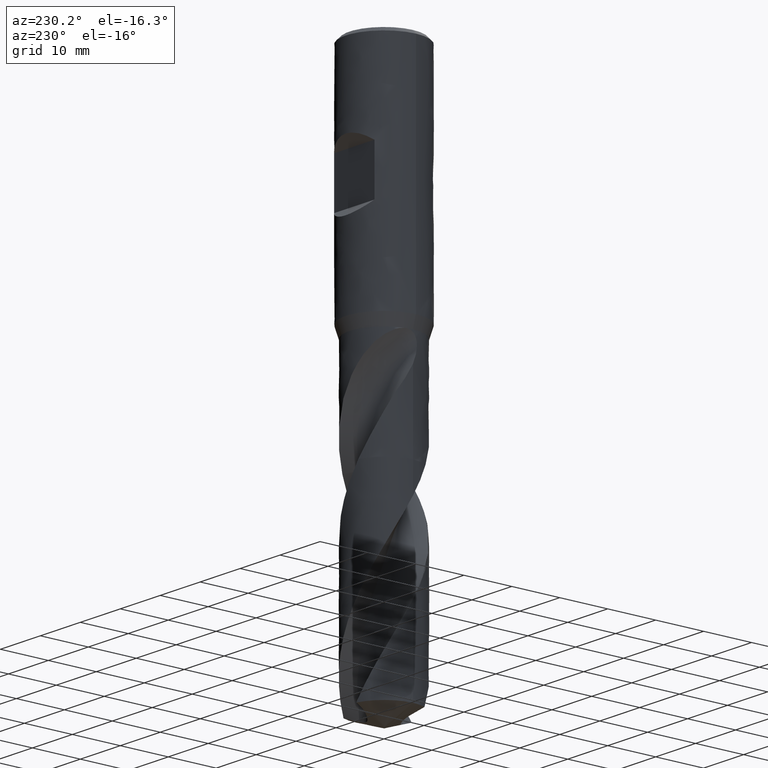
[diagram: clean part render]
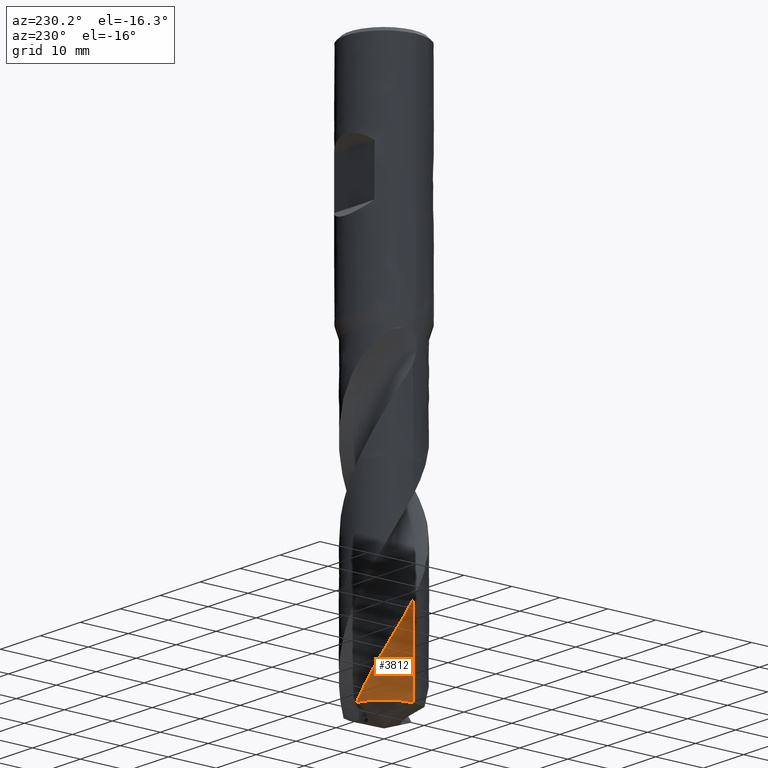
[diagram: same view with one face highlighted and labeled with its STEP entity id]
A machine part, auxiliary view. The second image highlights one B-rep face of the part: STEP entity #3812.
In plain terms, the highlighted face is a freeform B-spline surface patch.
Its self-contained STEP definition (entity closure, byte-faithful):
#2054 = VERTEX_POINT('', #2055);
#2055 = CARTESIAN_POINT('', (-1.53712467987491, 7.08517803012172, -112.36121580157));
#2197 = EDGE_CURVE('', #2198, #2054, #2200, .T.);
#2198 = VERTEX_POINT('', #2199);
#2199 = CARTESIAN_POINT('', (-3.03157197665095, 6.58574759236829, -109.576827914167));
#2200 = B_SPLINE_CURVE_WITH_KNOTS('', 3, (#2201, #2202, #2203, #2204, #2205, #2206, #2207, #2208, #2209, #2210, #2211, #2212, #2213), .UNSPECIFIED., .F., .U., (4, 3, 3, 3, 4), (0., 0.996758533560666, 1.99337488013203, 2.98984756793091, 3.20071236530099), .UNSPECIFIED.);
#2201 = CARTESIAN_POINT('', (-3.03157197665099, 6.58574759236827, -109.576827914167));
#2202 = CARTESIAN_POINT('', (-2.88264870522454, 6.6543004195144, -109.865816359974));
#2203 = CARTESIAN_POINT('', (-2.73139469751589, 6.71780082079541, -110.154855646321));
#2204 = CARTESIAN_POINT('', (-2.57820367295886, 6.77608779612111, -110.443866184527));
#2205 = CARTESIAN_POINT('', (-2.4250345010069, 6.83436645684576, -110.732835495559));
#2206 = CARTESIAN_POINT('', (-2.26988539851555, 6.88744983259345, -111.02185644557));
#2207 = CARTESIAN_POINT('', (-2.113155312244, 6.9352054494683, -111.31084700141));
#2208 = CARTESIAN_POINT('', (-1.95644781806808, 6.98295418253744, -111.599795900268));
#2209 = CARTESIAN_POINT('', (-1.79811790533384, 7.02538945238311, -111.888796210449));
#2210 = CARTESIAN_POINT('', (-1.63857253178527, 7.06240610968234, -112.177766256048));
#2211 = CARTESIAN_POINT('', (-1.6048109412504, 7.0702392495529, -112.238915558841));
#2212 = CARTESIAN_POINT('', (-1.57099371086975, 7.07783016628481, -112.300065675288));
#2213 = CARTESIAN_POINT('', (-1.53712467987492, 7.08517803012172, -112.36121580157));
#3589 = VERTEX_POINT('', #3590);
#3590 = CARTESIAN_POINT('', (-7.25, 6.26474322883328E-15, -95.0610211563863));
#3663 = EDGE_CURVE('', #3589, #3664, #3666, .T.);
#3664 = VERTEX_POINT('', #3665);
#3665 = CARTESIAN_POINT('', (-7.25, 7.3240746286758E-15, -112.36121580157));
#3666 = LINE('', #3667, #3668);
#3667 = CARTESIAN_POINT('', (-7.25, 6.26474322883328E-15, -95.0610211563863));
#3668 = VECTOR('', #3669, 17.3001946451837);
#3669 = DIRECTION('', (0., 1.05933139984252E-15, -17.3001946451837));
#3697 = EDGE_CURVE('', #2198, #3589, #3698, .T.);
#3698 = B_SPLINE_CURVE_WITH_KNOTS('', 3, (#3699, #3700, #3701, #3702, #3703, #3704, #3705, #3706, #3707, #3708, #3709, #3710, #3711, #3712, #3713, #3714, #3715, #3716, #3717, #3718, #3719, #3720, #3721, #3722, #3723, #3724, #3725, #3726, #3727, #3728, #3729, #3730, #3731, #3732, #3733, #3734, #3735, #3736, #3737, #3738, #3739, #3740, #3741, #3742, #3743, #3744, #3745, #3746, #3747, #3748, #3749, #3750), .UNSPECIFIED., .F., .U., (4, 3, 3, 3, 3, 3, 3, 3, 3, 3, 3, 3, 3, 3, 3, 3, 3, 4), (0., 0.998228876727128, 1.99631289244956, 2.99425419856716, 3.99205334051942, 4.98971126469942, 5.98722884260465, 6.98460554234664, 7.98184161488505, 8.97893669278574, 9.97588933793899, 10.9726989482532, 11.9693638968679, 12.9658819010708, 13.962251277234, 14.9584690400776, 15.9545320105228, 16.7009062836402), .UNSPECIFIED.);
#3699 = CARTESIAN_POINT('', (-3.03157197665095, 6.58574759236829, -109.576827914167));
#3700 = CARTESIAN_POINT('', (-3.18071492847851, 6.51709364125128, -109.287413174357));
#3701 = CARTESIAN_POINT('', (-3.32756605708097, 6.44335134881758, -108.997970676306));
#3702 = CARTESIAN_POINT('', (-3.47174463071432, 6.36470653047777, -108.708582687342));
#3703 = CARTESIAN_POINT('', (-3.61590228143759, 6.2860731249188, -108.419236693791));
#3704 = CARTESIAN_POINT('', (-3.75742703736898, 6.20251736680453, -108.129862851594));
#3705 = CARTESIAN_POINT('', (-3.89595047208507, 6.11425137846492, -107.840542755416));
#3706 = CARTESIAN_POINT('', (-4.03445410022746, 6.02599801071047, -107.551264027255));
#3707 = CARTESIAN_POINT('', (-4.169997324491, 5.93301016515341, -107.261958441879));
#3708 = CARTESIAN_POINT('', (-4.3022248150891, 5.83552582381671, -106.972706322752));
#3709 = CARTESIAN_POINT('', (-4.43443346889718, 5.73805536984986, -106.683495409743));
#3710 = CARTESIAN_POINT('', (-4.56336417306603, 5.63606266118761, -106.394256240302));
#3711 = CARTESIAN_POINT('', (-4.68868197656585, 5.52980662615128, -106.105071744025));
#3712 = CARTESIAN_POINT('', (-4.81398204392992, 5.42356562945276, -105.815928175816));
#3713 = CARTESIAN_POINT('', (-4.93570443434389, 5.31303340358926, -105.526757036352));
#3714 = CARTESIAN_POINT('', (-5.0535299008309, 5.19849358385755, -105.237639329457));
#3715 = CARTESIAN_POINT('', (-5.17133879213227, 5.08396987710067, -104.948562294411));
#3716 = CARTESIAN_POINT('', (-5.28528627020376, 4.96540623884218, -104.659458127032));
#3717 = CARTESIAN_POINT('', (-5.39507278282377, 4.84310743924128, -104.370407834292));
#3718 = CARTESIAN_POINT('', (-5.50484379043156, 4.7208259117473, -104.081398363765));
#3719 = CARTESIAN_POINT('', (-5.61048509468228, 4.59477687695877, -103.792360394956));
#3720 = CARTESIAN_POINT('', (-5.71172083416232, 4.46528219853977, -103.503377050375));
#3721 = CARTESIAN_POINT('', (-5.81294229969858, 4.33580577849246, -103.214434451602));
#3722 = CARTESIAN_POINT('', (-5.90978758448297, 4.20284851143182, -102.925464527801));
#3723 = CARTESIAN_POINT('', (-6.00200055042663, 4.06675415936081, -102.636547844196));
#3724 = CARTESIAN_POINT('', (-6.09420047880166, 3.93067904904649, -102.347672009196));
#3725 = CARTESIAN_POINT('', (-6.18179642704807, 3.79142791680896, -102.058768696209));
#3726 = CARTESIAN_POINT('', (-6.26455699813397, 3.64935961740286, -101.769919606435));
#3727 = CARTESIAN_POINT('', (-6.3473057470619, 3.50731161212784, -101.481111778091));
#3728 = CARTESIAN_POINT('', (-6.42524305831477, 3.36240860123907, -101.192275454669));
#3729 = CARTESIAN_POINT('', (-6.49816346360379, 3.21502279934138, -100.903493542396));
#3730 = CARTESIAN_POINT('', (-6.57107340685282, 3.06765814318673, -100.614753062257));
#3731 = CARTESIAN_POINT('', (-6.638988556976, 2.91776938585364, -100.325985387623));
#3732 = CARTESIAN_POINT('', (-6.70172730376602, 2.76574603786339, -100.037270964886));
#3733 = CARTESIAN_POINT('', (-6.764456945614, 2.61374475221649, -99.7485984417436));
#3734 = CARTESIAN_POINT('', (-6.82202997386399, 2.45956536802603, -99.4598980223772));
#3735 = CARTESIAN_POINT('', (-6.87429269763511, 2.30360584893353, -99.1712521138139));
#3736 = CARTESIAN_POINT('', (-6.92654771599307, 2.14766932390722, -98.882648762083));
#3737 = CARTESIAN_POINT('', (-6.9735082663769, 1.98991058331535, -98.5940170854794));
#3738 = CARTESIAN_POINT('', (-7.0150481567613, 1.83073738103532, -98.3054395212199));
#3739 = CARTESIAN_POINT('', (-7.05658185158029, 1.67158791901982, -98.0169049975452));
#3740 = CARTESIAN_POINT('', (-7.09270845865225, 1.5109783219521, -97.7283432088438));
#3741 = CARTESIAN_POINT('', (-7.12332904177819, 1.34932700356874, -97.4398349740025));
#3742 = CARTESIAN_POINT('', (-7.15394496549931, 1.18770028298376, -97.1513706402407));
#3743 = CARTESIAN_POINT('', (-7.17906532608151, 1.02498623183632, -96.8628779200683));
#3744 = CARTESIAN_POINT('', (-7.19862044472806, 0.861605299858214, -96.5744399339332));
#3745 = CARTESIAN_POINT('', (-7.21817252489865, 0.698249754022834, -96.2860467653162));
#3746 = CARTESIAN_POINT('', (-7.23216642821028, 0.534182477490453, -95.9976255289117));
#3747 = CARTESIAN_POINT('', (-7.24056114352922, 0.369830132379438, -95.7092581012949));
#3748 = CARTESIAN_POINT('', (-7.24685150842593, 0.246676912395199, -95.4931773558355));
#3749 = CARTESIAN_POINT('', (-7.25, 0.123340064376636, -95.277086890275));
#3750 = CARTESIAN_POINT('', (-7.25, 5.95943189706136E-15, -95.0610211563863));
#3812 = ADVANCED_FACE('', (#3813), #3825, .T.);
#3813 = FACE_OUTER_BOUND('', #3814, .T.);
#3814 = EDGE_LOOP('', (#3815, #3816, #3823, #3824));
#3815 = ORIENTED_EDGE('', *, *, #2197, .T.);
#3816 = ORIENTED_EDGE('', *, *, #3817, .F.);
#3817 = EDGE_CURVE('', #3664, #2054, #3818, .T.);
#3818 = CIRCLE('', #3819, 7.25);
#3819 = AXIS2_PLACEMENT_3D('', #3820, #3821, #3822);
#3820 = CARTESIAN_POINT('', (4.21287081475462E-31, 6.88014016398489E-15, -112.36121580157));
#3821 = DIRECTION('', (3.74939945665464E-33, 6.12323399573677E-17, -1.));
#3822 = DIRECTION('', (-1., 6.12323399573677E-17, 0.));
#3823 = ORIENTED_EDGE('', *, *, #3663, .F.);
#3824 = ORIENTED_EDGE('', *, *, #3697, .F.);
#3825 = (
   BOUNDED_SURFACE ()
   B_SPLINE_SURFACE (2, 1, ((#3826, #3827), (#3828, #3829), (#3830, #3831)), .UNSPECIFIED., .F., .F., .U.)
   B_SPLINE_SURFACE_WITH_KNOTS ((3, 3), (2, 2), (0., 9.73476743528004), (0.722580863397019, 1.), .UNSPECIFIED.)
   GEOMETRIC_REPRESENTATION_ITEM ()
   RATIONAL_B_SPLINE_SURFACE (((1., 1.), (0.749633041281299, 0.749633041281299), (0.927296572800583, 0.927296572800583)))
   REPRESENTATION_ITEM ('')
   SURFACE ()
);
#3826 = CARTESIAN_POINT('', (-7.25, 6.26474322883328E-15, -95.0610211563863));
#3827 = CARTESIAN_POINT('', (-7.25, 7.3240746286758E-15, -112.36121580157));
#3828 = CARTESIAN_POINT('', (-7.25, 5.84577351406305, -95.0610211563863));
#3829 = CARTESIAN_POINT('', (-7.25, 5.84577351406305, -112.36121580157));
#3830 = CARTESIAN_POINT('', (-1.53712467987491, 7.08517803012172, -95.0610211563863));
#3831 = CARTESIAN_POINT('', (-1.53712467987491, 7.08517803012172, -112.36121580157));